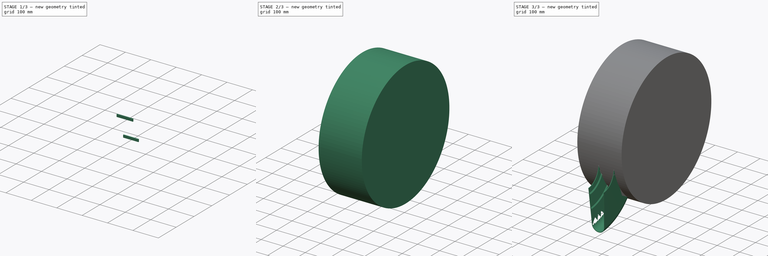
[diagram: build sequence overview — one tinted view per stage of 3, left to right]
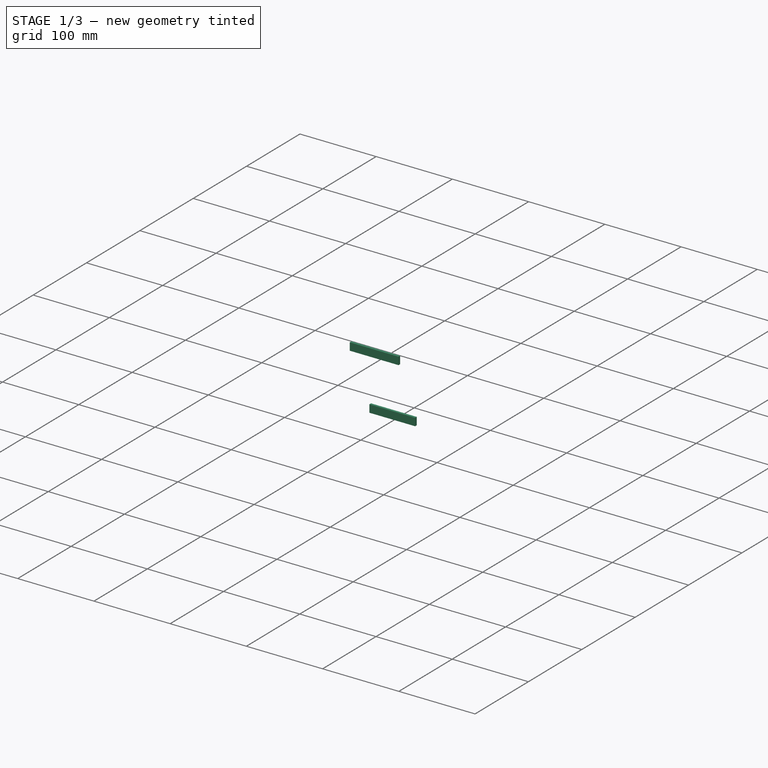
[diagram: stage 1 of 3 — iso view after this stage's code; geometry added in this stage tinted green]
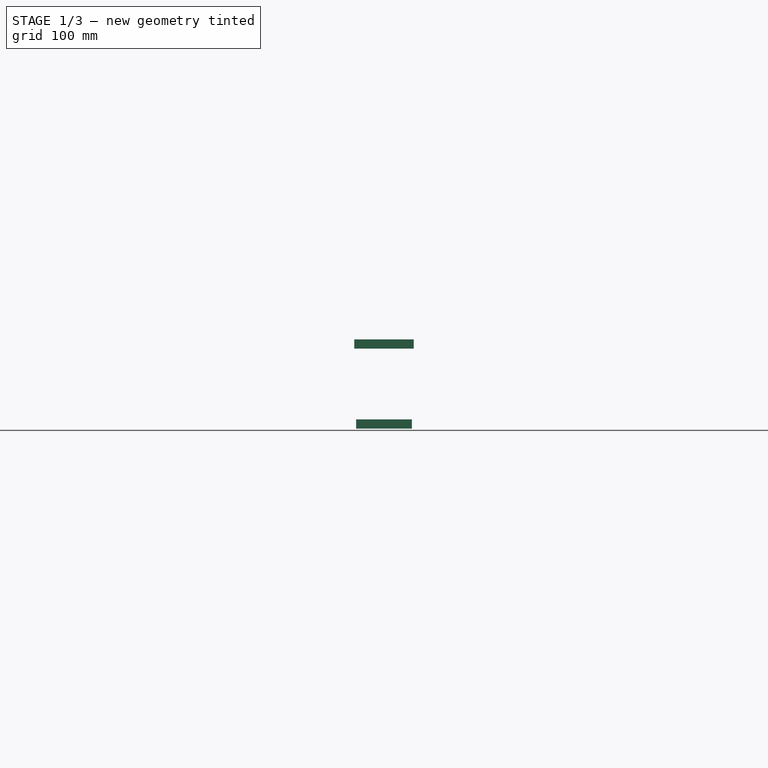
[diagram: stage 1 of 3 — front view after this stage's code; geometry added in this stage tinted green]
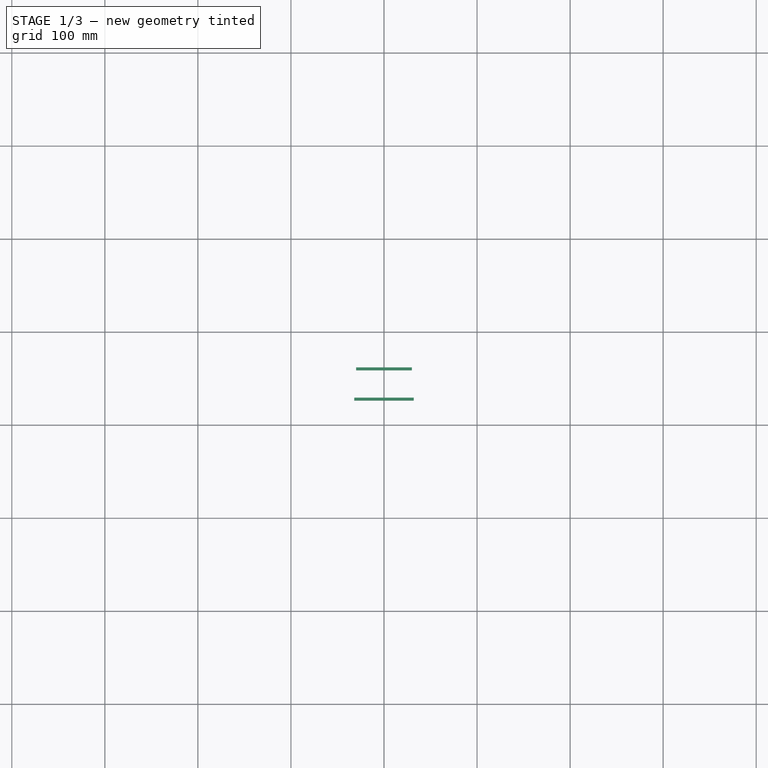
[diagram: stage 1 of 3 — top view after this stage's code; geometry added in this stage tinted green]
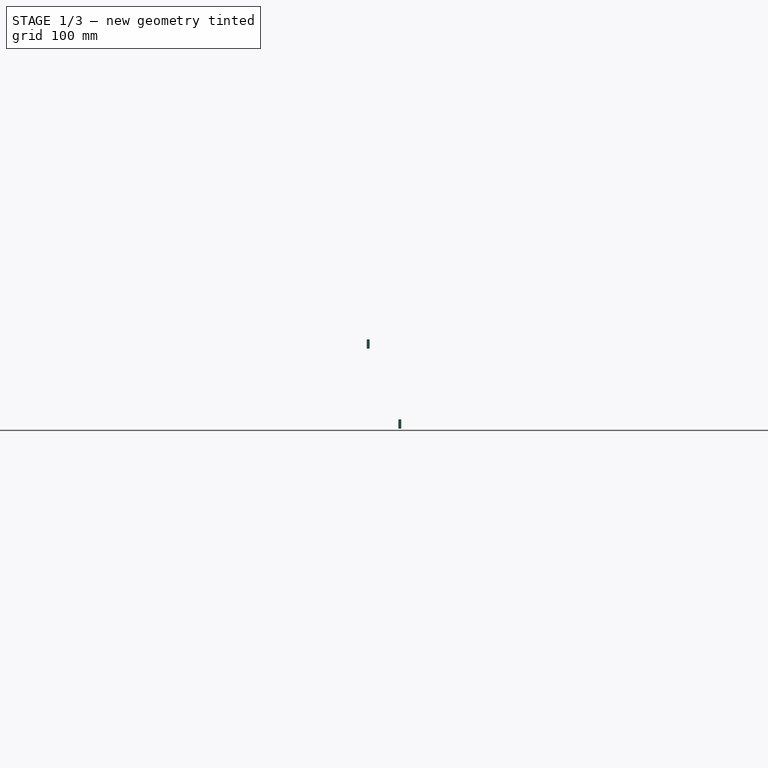
[diagram: stage 1 of 3 — right view after this stage's code; geometry added in this stage tinted green]
FCSTD DOCUMENT  (FreeCAD 0.19R)
Label: Mudguard8
License: All rights reserved
LicenseURL: http://en.wikipedia.org/wiki/All_rights_reserved
objects: Sketcher::SketchObject×6, Part::Cylinder×2, Part::Box×2, PartDesign::Revolution×1, PartDesign::Body×1
note: 13 computed .brp shape members not serialized (recipe doc carries the construction recipe); baked Part::Feature solids carry a one-line shape summary decoded from their .brp

FEATURE [Part::Box] Box003  label="Cube003"
  AttacherType = Attacher::AttachEngine3D
  Height = 10
  Length = 64
  Placement = pos=(-32,125,17) rot=(0,0,1;0rad)
  Width = 3
FEATURE [Part::Box] Box004  label="Cube004"
  AttacherType = Attacher::AttachEngine3D
  Height = 10
  Length = 60
  Placement = pos=(-30,159,-69) rot=(0,0,1;0rad)
  Width = 3
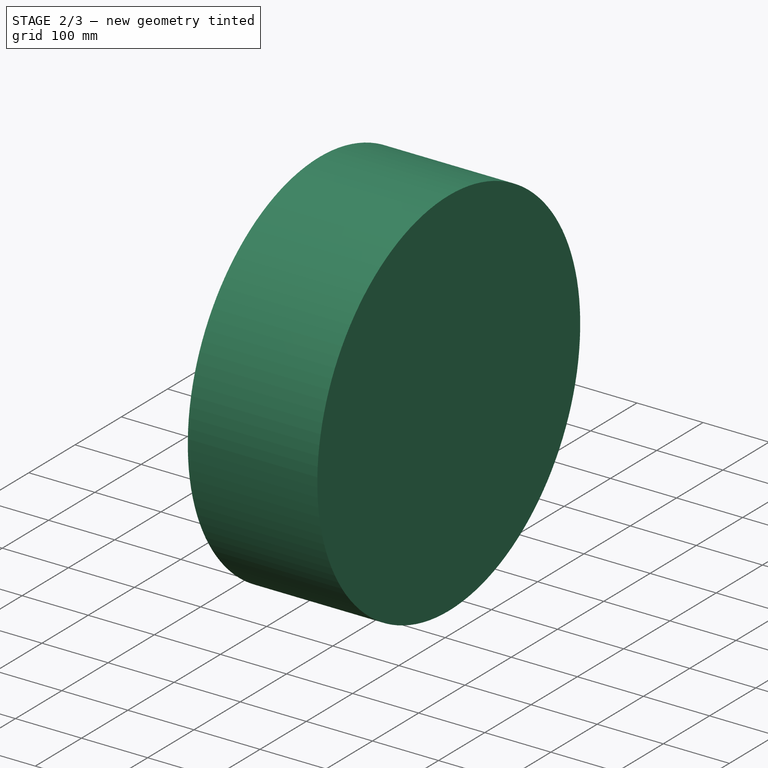
[diagram: stage 2 of 3 — iso view after this stage's code; geometry added in this stage tinted green]
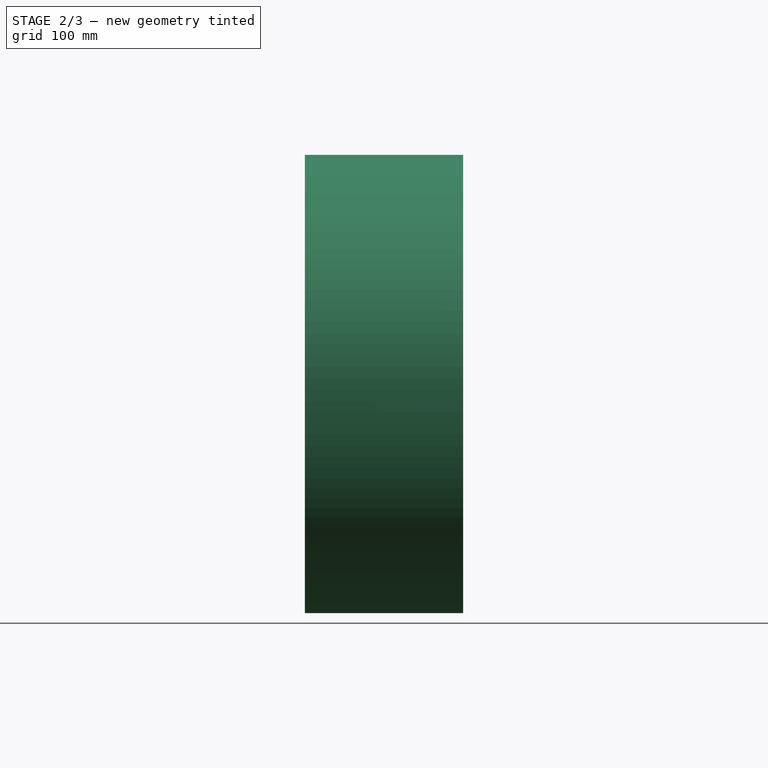
[diagram: stage 2 of 3 — front view after this stage's code; geometry added in this stage tinted green]
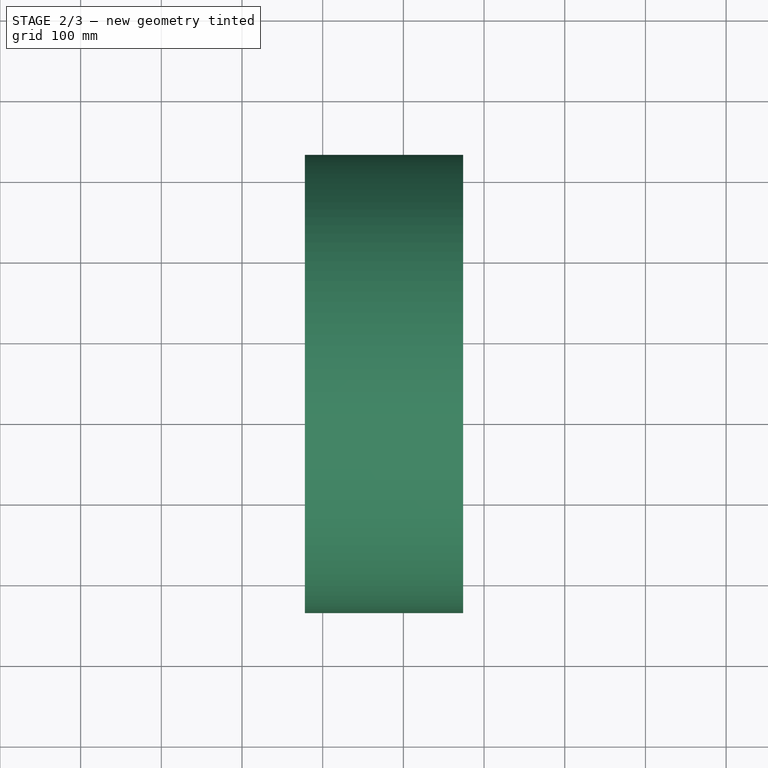
[diagram: stage 2 of 3 — top view after this stage's code; geometry added in this stage tinted green]
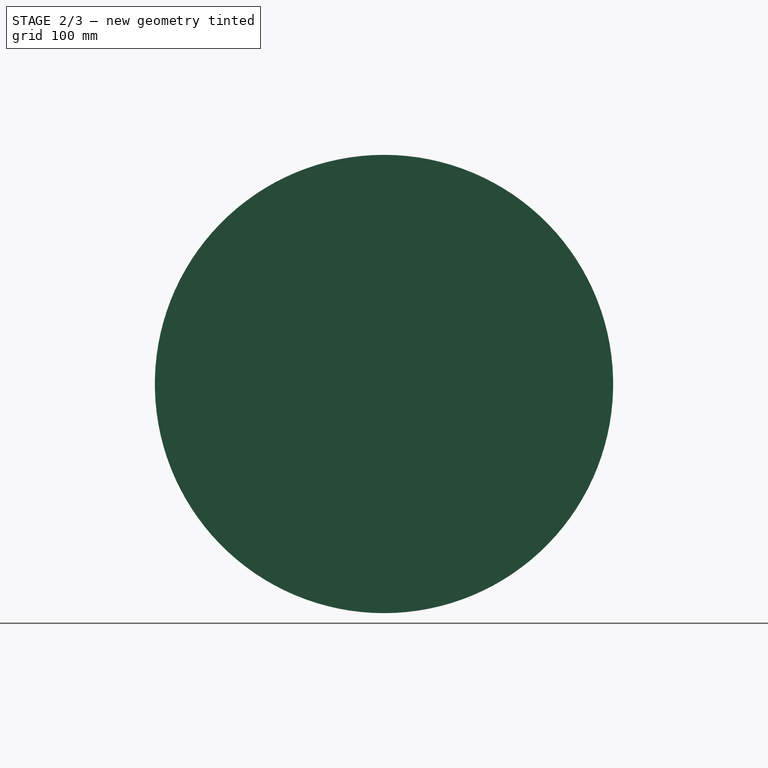
[diagram: stage 2 of 3 — right view after this stage's code; geometry added in this stage tinted green]
FEATURE [Sketcher::SketchObject] Sketch005
  FullyConstrained = false
  MapMode = 5
  Placement = pos=(1.4e-15,5.40472,-5.89822) rot=(1,0,0;3.88336rad)
  sketch-geometry (8):
    g0: LineSegment StartX=-37.5477 StartY=128.579 StartZ=0 EndX=-34.5477 EndY=128.579 EndZ=0
    g1: LineSegment StartX=-34.5477 StartY=128.579 StartZ=0 EndX=-34.5477 EndY=121.579 EndZ=0
    g2: LineSegment StartX=-34.5477 StartY=121.579 StartZ=0 EndX=-37.5477 EndY=121.579 EndZ=0
    g3: LineSegment StartX=-37.5477 StartY=121.579 StartZ=0 EndX=-37.5477 EndY=128.579 EndZ=0
    g4: LineSegment StartX=34.5477 StartY=128.579 StartZ=0 EndX=37.5477 EndY=128.579 EndZ=0
    g5: LineSegment StartX=37.5477 StartY=128.579 StartZ=0 EndX=37.5477 EndY=121.579 EndZ=0
    g6: LineSegment StartX=37.5477 StartY=121.579 StartZ=0 EndX=34.5477 EndY=121.579 EndZ=0
    g7: LineSegment StartX=34.5477 StartY=121.579 StartZ=0 EndX=34.5477 EndY=128.579 EndZ=0
  constraints (21):
    c: Coincident(g0,g1)
    c: Coincident(g1,g2)
    c: Coincident(g2,g3)
    c: Coincident(g3,g0)
    c: Horizontal(g0)
    c: Horizontal(g2)
    c: Vertical(g1)
    c: Vertical(g3)
    c: Coincident(g4,g5)
    c: Coincident(g5,g6)
    c: Coincident(g6,g7)
    c: Coincident(g7,g4)
    c: Horizontal(g4)
    c: Horizontal(g6)
    c: Vertical(g5)
    c: Vertical(g7)
    c: Distance(g4) = 3
    c: Distance(g5) = 7
    c: Equal(g4,g0)
    c: Symmetric(g0,g4,g-2)
    c: Equal(g1,g5)
FEATURE [Sketcher::SketchObject] Sketch006
  FullyConstrained = false
  MapMode = 5
  Placement = pos=(32,0,0) rot=(0.57735,0.57735,0.57735;2.0944rad)
  sketch-geometry (4):
    g0: LineSegment StartX=154.311 StartY=128.181 StartZ=0 EndX=156.15 EndY=125.81 EndZ=0
    g1: LineSegment StartX=156.15 StartY=125.81 StartZ=0 EndX=160.891 EndY=129.486 EndZ=0
    g2: LineSegment StartX=160.891 StartY=129.486 StartZ=0 EndX=159.053 EndY=131.857 EndZ=0
    g3: LineSegment StartX=159.053 StartY=131.857 StartZ=0 EndX=154.311 EndY=128.181 EndZ=0
  constraints (9):
    c: Coincident(g0,g1)
    c: Coincident(g1,g2)
    c: Coincident(g2,g3)
    c: Coincident(g3,g0)
    c: Equal(g1,g3)
    c: Perpendicular(g1,g0)
    c: Equal(g2,g0)
    c: Distance(g2) = 3
    c: Distance(g3) = 6
FEATURE [Sketcher::SketchObject] Sketch007
  FullyConstrained = false
  MapMode = 5
  Placement = pos=(1.4e-15,5.40472,-5.89822) rot=(1,0,0;3.88336rad)
  sketch-geometry (8):
    g0: LineSegment StartX=-37.3985 StartY=-123.117 StartZ=0 EndX=-34.3985 EndY=-123.117 EndZ=0
    g1: LineSegment StartX=-34.3985 StartY=-123.117 StartZ=0 EndX=-34.3985 EndY=-129.117 EndZ=0
    g2: LineSegment StartX=-34.3985 StartY=-129.117 StartZ=0 EndX=-37.3985 EndY=-129.117 EndZ=0
    g3: LineSegment StartX=-37.3985 StartY=-129.117 StartZ=0 EndX=-37.3985 EndY=-123.117 EndZ=0
    g4: LineSegment StartX=34.3985 StartY=-123.117 StartZ=0 EndX=37.3985 EndY=-123.117 EndZ=0
    g5: LineSegment StartX=37.3985 StartY=-123.117 StartZ=0 EndX=37.3985 EndY=-129.117 EndZ=0
    g6: LineSegment StartX=37.3985 StartY=-129.117 StartZ=0 EndX=34.3985 EndY=-129.117 EndZ=0
    g7: LineSegment StartX=34.3985 StartY=-129.117 StartZ=0 EndX=34.3985 EndY=-123.117 EndZ=0
  constraints (21):
    c: Coincident(g0,g1)
    c: Coincident(g1,g2)
    c: Coincident(g2,g3)
    c: Coincident(g3,g0)
    c: Horizontal(g0)
    c: Horizontal(g2)
    c: Vertical(g1)
    c: Vertical(g3)
    c: Coincident(g4,g5)
    c: Coincident(g5,g6)
    c: Coincident(g6,g7)
    c: Coincident(g7,g4)
    c: Horizontal(g4)
    c: Horizontal(g6)
    c: Vertical(g5)
    c: Vertical(g7)
    c: Distance(g0) = 3
    c: Distance(g4) = 3
    c: Distance(g5) = 6
    c: Distance(g1) = 6
    c: Symmetric(g1,g6,g-2)
FEATURE [PartDesign::Body] Body
  Group = -> [Sketch,Revolution,Sketch002,Sketch003,Sketch005,Sketch006,Sketch007]
  Origin = -> Origin
  Tip = -> Revolution
FEATURE [Part::Cylinder] Cylinder007
  Angle = 360
  AttacherType = Attacher::AttachEngine3D
  Height = 196
  Placement = pos=(74,345,69) rot=(0,-1,0;1.5708rad)
  Radius = 284
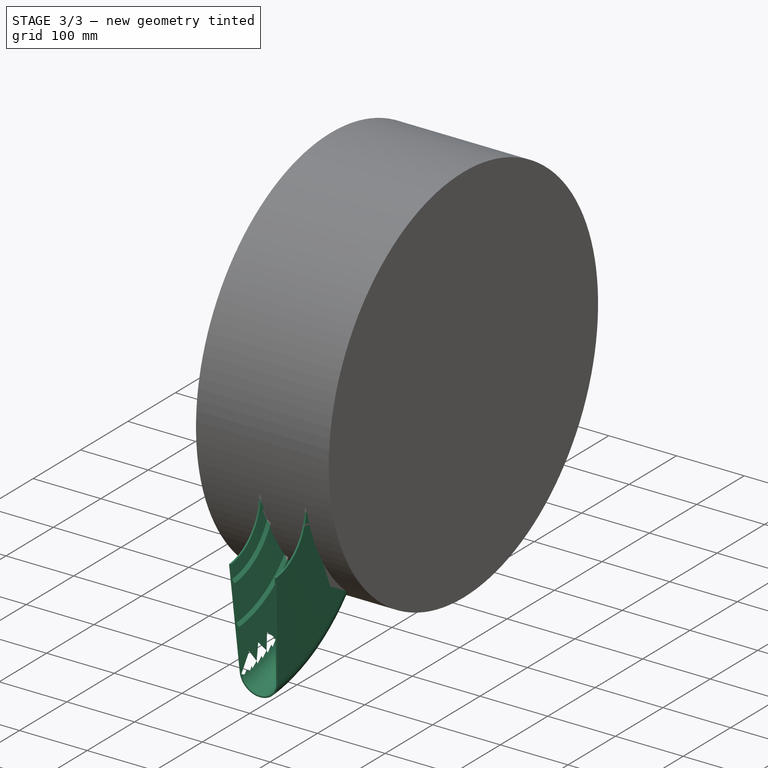
[diagram: stage 3 of 3 — iso view after this stage's code; geometry added in this stage tinted green]
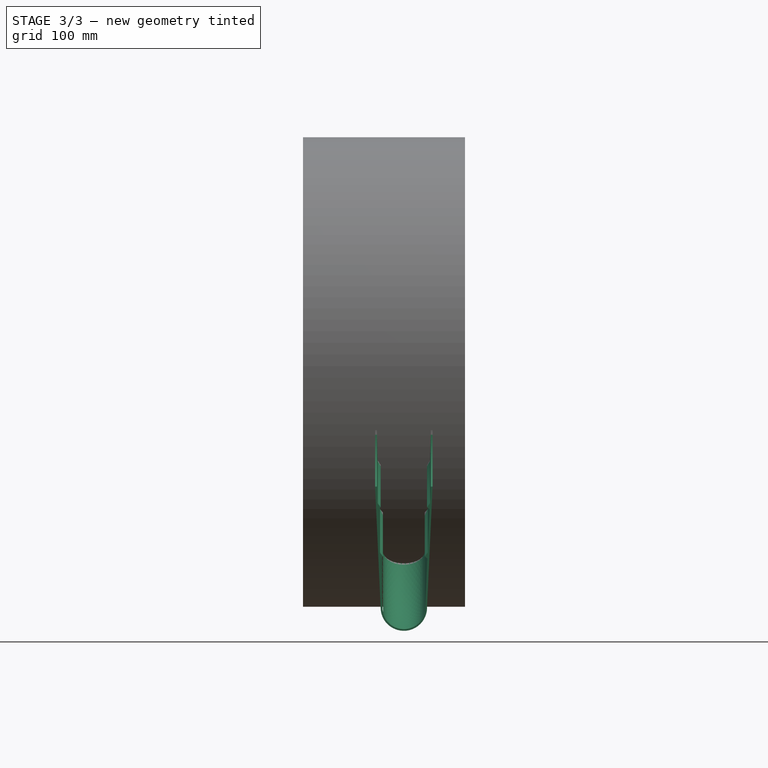
[diagram: stage 3 of 3 — front view after this stage's code; geometry added in this stage tinted green]
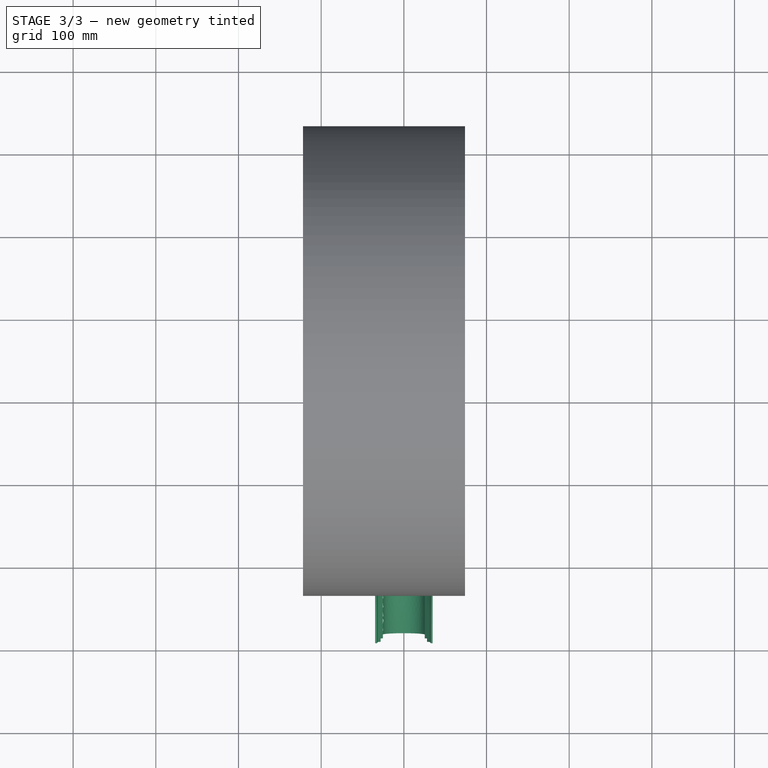
[diagram: stage 3 of 3 — top view after this stage's code; geometry added in this stage tinted green]
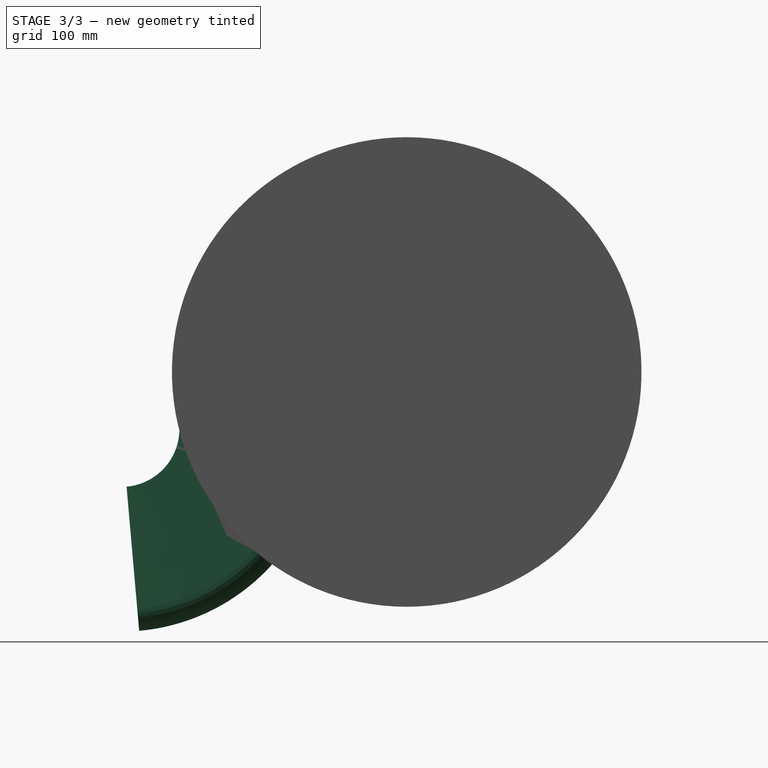
[diagram: stage 3 of 3 — right view after this stage's code; geometry added in this stage tinted green]
FEATURE [Sketcher::SketchObject] Sketch
  FullyConstrained = false
  MapMode = 5
  Support = -> [XY_Plane]
  sketch-geometry (22):
    g0: LineSegment StartX=-38.02 StartY=245 StartZ=0 EndX=36.46 EndY=245 EndZ=0
    g1: ArcOfCircle CenterX=9e-16 CenterY=216.971 CenterZ=0 NormalX=0 NormalY=0 NormalZ=1 AngleXU=0 Radius=28.029 StartAngle=0.045501 EndAngle=3.09609
    g2: LineSegment StartX=-34.75 StartY=70 StartZ=0 EndX=-28 EndY=218.246 EndZ=0
    g3: LineSegment StartX=-34.75 StartY=70 StartZ=0 EndX=-32.5 EndY=70 EndZ=0
    g4: LineSegment StartX=32.5 StartY=70 StartZ=0 EndX=34.75 EndY=70 EndZ=0
    g5: LineSegment StartX=34.75 StartY=70 StartZ=0 EndX=28 EndY=218.246 EndZ=0
    g6: ArcOfCircle CenterX=1.2e-15 CenterY=217.11 CenterZ=0 NormalX=0 NormalY=0 NormalZ=1 AngleXU=0 Radius=25.83 StartAngle=0.112126 EndAngle=3.02947
    g7: LineSegment StartX=-25.6678 StartY=220 StartZ=0 EndX=-25.6678 EndY=220 EndZ=0
    g8: LineSegment StartX=-32.5 StartY=70 StartZ=0 EndX=-31.5818 EndY=90.1654 EndZ=0
    g9: LineSegment StartX=-31.5818 StartY=90.1654 StartZ=0 EndX=-28.0284 EndY=95 EndZ=0
    g10: LineSegment StartX=-28.0284 StartY=95 StartZ=0 EndX=-31.2515 EndY=97.3689 EndZ=0
    g11: LineSegment StartX=-31.2515 StartY=97.3689 StartZ=0 EndX=-28.8551 EndY=150 EndZ=0
    g12: LineSegment StartX=-28.8551 StartY=150 StartZ=0 EndX=-25.3032 EndY=154.836 EndZ=0
    g13: LineSegment StartX=-25.3032 StartY=154.836 StartZ=0 EndX=-28.5271 EndY=157.204 EndZ=0
    g14: LineSegment StartX=-28.5271 StartY=157.204 StartZ=0 EndX=-25.6678 EndY=220 EndZ=0
    g15: LineSegment StartX=32.5 StartY=70 StartZ=0 EndX=31.5818 EndY=90.1654 EndZ=0
    g16: LineSegment StartX=31.5818 StartY=90.1654 StartZ=0 EndX=28.0284 EndY=95 EndZ=0
    g17: LineSegment StartX=28.0284 StartY=95 StartZ=0 EndX=31.2515 EndY=97.3689 EndZ=0
    g18: LineSegment StartX=31.2515 StartY=97.3689 StartZ=0 EndX=28.8551 EndY=150 EndZ=0
    g19: LineSegment StartX=28.8551 StartY=150 StartZ=0 EndX=25.3032 EndY=154.836 EndZ=0
    g20: LineSegment StartX=25.3032 StartY=154.836 StartZ=0 EndX=28.5271 EndY=157.204 EndZ=0
    g21: LineSegment StartX=28.5271 StartY=157.204 StartZ=0 EndX=25.6678 EndY=220 EndZ=0
  constraints (56):
    c: Horizontal(g0)
    c: DistanceY(g0) = 245
    c: Tangent(g1,g0)
    c: Symmetric(g1,g1,g-2)
    c: Distance(g0) = 74.48
    c: DistanceX(g0) = 36.46
    c: Tangent(g2,g1) = 1.5708
    c: Coincident(g3,g2)
    c: Distance(g3) = 2.25
    c: Coincident(g4,g5)
    c: Coincident(g5,g1)
    c: Symmetric(g4,g3,g-2)
    c: Symmetric(g4,g2,g-2)
    c: Horizontal(g4)
    c: Distance(g4,g3) = 65
    c: DistanceY(g4) = 70
    c: Distance(g1,g1) = 56
    c: Symmetric(g6,g6,g-2)
    c: Distance(g6,g5) = 2.25
    c: DistanceY(g6) = 220
    c: Coincident(g7,g6)
    c: Coincident(g3,g8)
    c: Coincident(g8,g9)
    c: Coincident(g9,g10)
    c: Coincident(g10,g11)
    c: Coincident(g11,g12)
    c: Coincident(g12,g13)
    c: Coincident(g13,g14)
    c: Coincident(g14,g6)
    c: Distance(g13) = 4
    c: Distance(g9) = 6
    c: Distance(g12) = 6
    c: Parallel(g2,g8)
    c: Parallel(g11,g2)
    c: Parallel(g14,g2)
    c: Distance(g10) = 4
    c: Distance(g10,g2) = 2.25
    c: Angle(g13,g12) = 1.5708
    c: DistanceY(g11) = 150
    c: DistanceY(g9) = 95
    c: Angle(g10,g9) = 1.5708
    c: Coincident(g4,g15)
    c: Coincident(g15,g16)
    c: Coincident(g16,g17)
    c: Coincident(g17,g18)
    c: Coincident(g18,g19)
    c: Coincident(g19,g20)
    c: Coincident(g20,g21)
    c: Coincident(g21,g6)
    c: Symmetric(g15,g8,g-2)
    c: Symmetric(g16,g9,g-2)
    c: Symmetric(g17,g10,g-2)
    c: Symmetric(g18,g11,g-2)
    c: Symmetric(g19,g12,g-2)
    c: Symmetric(g20,g13,g-2)
    c: Radius(g6) = 25.83
FEATURE [PartDesign::Revolution] Revolution
  Angle = 85
  Axis = (1,0,0)
  Base = (0,0,0)
  Profile = -> Sketch
  ReferenceAxis = -> Sketch [H_Axis]
  Reversed = true
FEATURE [Sketcher::SketchObject] Sketch002
  FullyConstrained = false
  MapMode = 5
  Placement = pos=(0,9.6e-15,-1.05e-14) rot=(1,0,0;0.741765rad)
  sketch-geometry (21):
    g0: LineSegment StartX=-29.785 StartY=287.821 StartZ=0 EndX=29.785 EndY=287.821 EndZ=0
    g1: LineSegment StartX=-43.3942 StartY=164.412 StartZ=0 EndX=-46.5 EndY=152.821 EndZ=0
    g2: LineSegment StartX=-46.5 StartY=152.821 StartZ=0 EndX=-33.2488 EndY=139.57 EndZ=0
    g3: LineSegment StartX=-33.2488 StartY=139.57 StartZ=0 EndX=-31 EndY=176.806 EndZ=0
    g4: LineSegment StartX=-31 StartY=176.806 StartZ=0 EndX=-43.3942 EndY=164.412 EndZ=0
    g5: LineSegment StartX=43.3942 StartY=164.412 StartZ=0 EndX=46.5 EndY=152.821 EndZ=0
    g6: LineSegment StartX=46.5 StartY=152.821 StartZ=0 EndX=33.2488 EndY=139.57 EndZ=0
    g7: LineSegment StartX=33.2488 StartY=139.57 StartZ=0 EndX=31 EndY=176.806 EndZ=0
    g8: LineSegment StartX=31 StartY=176.806 StartZ=0 EndX=43.3942 EndY=164.412 EndZ=0
    g9: LineSegment StartX=28 StartY=225.821 StartZ=0 EndX=32 EndY=229.821 EndZ=0
    g10: LineSegment StartX=32 StartY=229.821 StartZ=0 EndX=32 EndY=237.821 EndZ=0
    g11: LineSegment StartX=32 StartY=237.821 StartZ=0 EndX=28 EndY=241.821 EndZ=0
    g12: LineSegment StartX=28 StartY=241.821 StartZ=0 EndX=24 EndY=237.821 EndZ=0
    g13: LineSegment StartX=24 StartY=237.821 StartZ=0 EndX=24 EndY=229.821 EndZ=0
    g14: LineSegment StartX=24 StartY=229.821 StartZ=0 EndX=28 EndY=225.821 EndZ=0
    g15: LineSegment StartX=-28 StartY=225.821 StartZ=0 EndX=-24 EndY=229.821 EndZ=0
    g16: LineSegment StartX=-24 StartY=229.821 StartZ=0 EndX=-24 EndY=237.821 EndZ=0
    g17: LineSegment StartX=-24 StartY=237.821 StartZ=0 EndX=-28 EndY=241.821 EndZ=0
    g18: LineSegment StartX=-28 StartY=241.821 StartZ=0 EndX=-32 EndY=237.821 EndZ=0
    g19: LineSegment StartX=-32 StartY=237.821 StartZ=0 EndX=-32 EndY=229.821 EndZ=0
    g20: LineSegment StartX=-32 StartY=229.821 StartZ=0 EndX=-28 EndY=225.821 EndZ=0
  constraints (55):
    c: Coincident(g1,g2)
    c: Coincident(g2,g3)
    c: Coincident(g3,g4)
    c: Coincident(g4,g1)
    c: Coincident(g5,g6)
    c: Coincident(g6,g7)
    c: Coincident(g7,g8)
    c: Coincident(g8,g5)
    c: Symmetric(g7,g3,g-2)
    c: Symmetric(g6,g2,g-2)
    c: Equal(g5,g1)
    c: Symmetric(g5,g1,g-2)
    c: Equal(g2,g6)
    c: Distance(g5,g1) = 93
    c: Angle(g6) = -2.35619
    c: Coincident(g9,g10)
    c: Vertical(g10)
    c: Coincident(g10,g11)
    c: Coincident(g11,g12)
    c: Coincident(g12,g13)
    c: Vertical(g13)
    c: Coincident(g13,g14)
    c: Coincident(g14,g9)
    c: Coincident(g15,g16)
    c: Coincident(g16,g17)
    c: Coincident(g17,g18)
    c: Coincident(g18,g19)
    c: Coincident(g19,g20)
    c: Coincident(g20,g15)
    c: Distance(g5) = 12
    c: Angle(g5) = -1.309
    c: Symmetric(g0,g0,g-2)
    c: Distance(g0) = 59.57
    c: Angle(g8) = -0.785398
    c: Distance(g7,g3) = 62
    c: Distance(g9,g13) = 8
    c: Symmetric(g13,g15,g-2)
    c: Symmetric(g12,g16,g-2)
    c: Symmetric(g9,g19,g-2)
    c: Symmetric(g10,g18,g-2)
    c: Equal(g13,g19)
    c: Distance(g10) = 8
    c: Angle(g12,g11) = 1.5708
    c: Equal(g18,g12)
    c: Equal(g20,g14)
    c: Equal(g15,g9)
    c: Equal(g17,g11)
    c: Angle(g15,g20) = 1.5708
    c: Equal(g20,g15)
    c: Distance(g10,g0) = 50
    c: DistanceY(g12,g10) = 0
    c: Distance(g9,g19) = 64
    c: Distance(g5,g0) = 135
    c: Distance(g2) = 18.74
    c: Equal(g17,g18)
FEATURE [Sketcher::SketchObject] Sketch003
  FullyConstrained = true
  MapMode = 5
  Placement = pos=(0,1.92e-14,-2.1e-14) rot=(1,0,0;0.741765rad)
  sketch-geometry (8):
    g0: LineSegment StartX=35 StartY=146.87 StartZ=0 EndX=45 EndY=97.88 EndZ=0
    g1: LineSegment StartX=45 StartY=97.88 StartZ=0 EndX=47.9394 EndY=98.48 EndZ=0
    g2: LineSegment StartX=47.9394 StartY=98.48 StartZ=0 EndX=37.9394 EndY=147.47 EndZ=0
    g3: LineSegment StartX=37.9394 StartY=147.47 StartZ=0 EndX=35 EndY=146.87 EndZ=0
    g4: LineSegment StartX=-47.9394 StartY=98.48 StartZ=0 EndX=-45 EndY=97.88 EndZ=0
    g5: LineSegment StartX=-45 StartY=97.88 StartZ=0 EndX=-35 EndY=146.87 EndZ=0
    g6: LineSegment StartX=-47.9394 StartY=98.48 StartZ=0 EndX=-37.9394 EndY=147.47 EndZ=0
    g7: LineSegment StartX=-37.9394 StartY=147.47 StartZ=0 EndX=-35 EndY=146.87 EndZ=0
  constraints (22):
    c: Coincident(g0,g1)
    c: Coincident(g1,g2)
    c: Coincident(g2,g3)
    c: Coincident(g3,g0)
    c: Coincident(g4,g5)
    c: Equal(g1,g3)
    c: Equal(g0,g2)
    c: Symmetric(g4,g0,g-2)
    c: Perpendicular(g0,g1)
    c: Distance(g3) = 3
    c: Distance(g0,g4) = 90
    c: Coincident(g4,g6)
    c: Coincident(g6,g7)
    c: Coincident(g7,g5)
    c: Equal(g7,g3)
    c: Equal(g6,g5)
    c: Perpendicular(g6,g7)
    c: Symmetric(g0,g5,g-2)
    c: Distance(g2) = 50
    c: Equal(g4,g7)
    c: DistanceY(g0) = 97.88
    c: Distance(g5,g0) = 70
FEATURE [Part::Cylinder] Cylinder
  Angle = 360
  AttacherType = Attacher::AttachEngine3D
  Height = 22
  Placement = pos=(35,166,156) rot=(0,-1,0;1.5708rad)
  Radius = 10
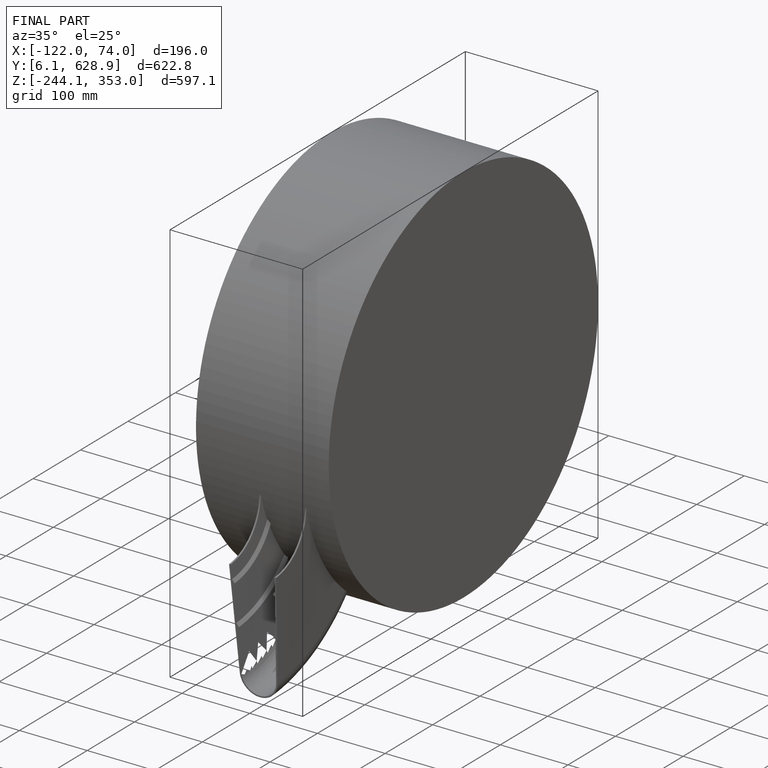
[diagram: finished part — iso view with bounding-box wireframe]
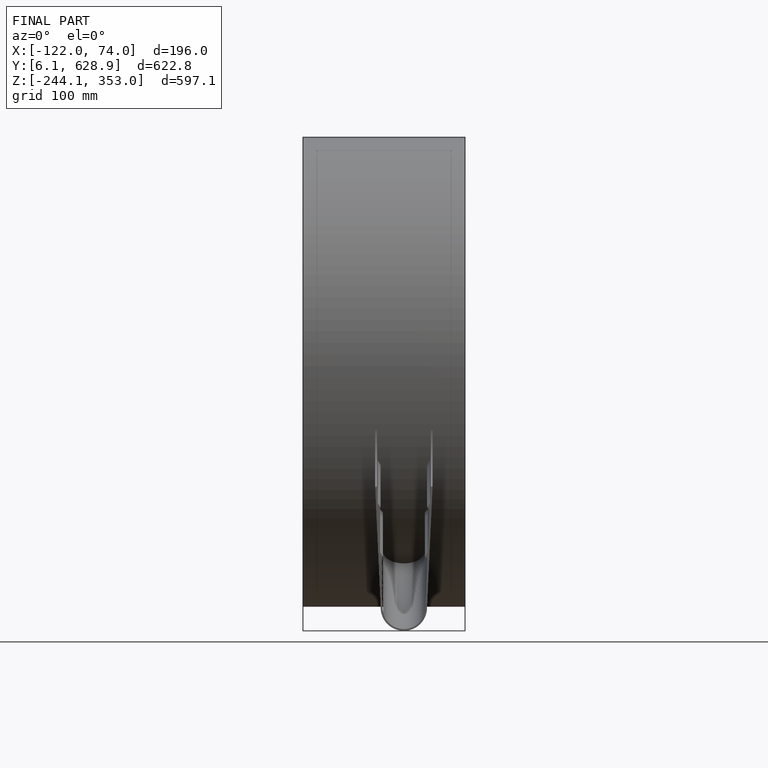
[diagram: finished part — front view with bounding-box wireframe]
